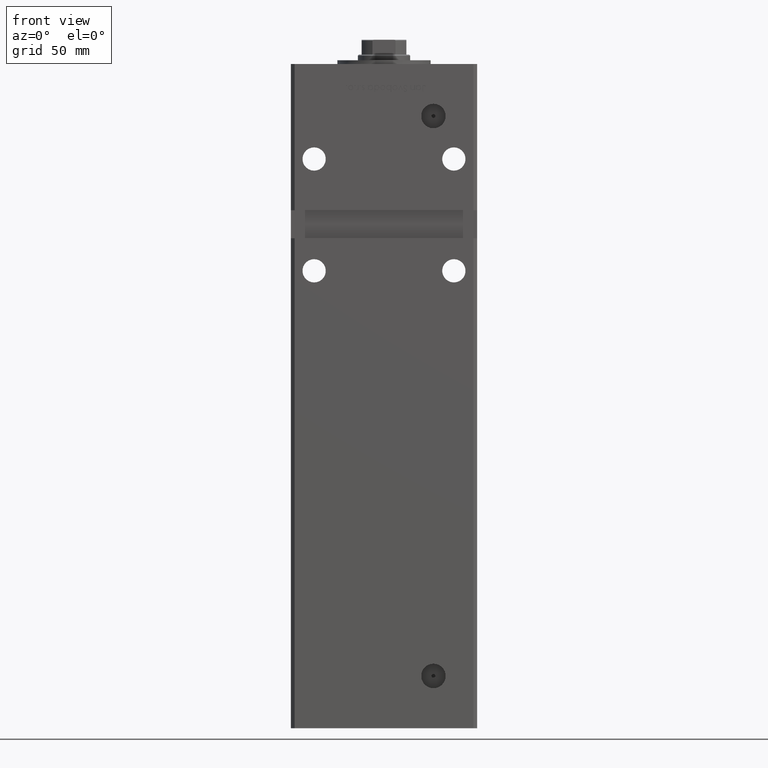
[diagram: clean part render]
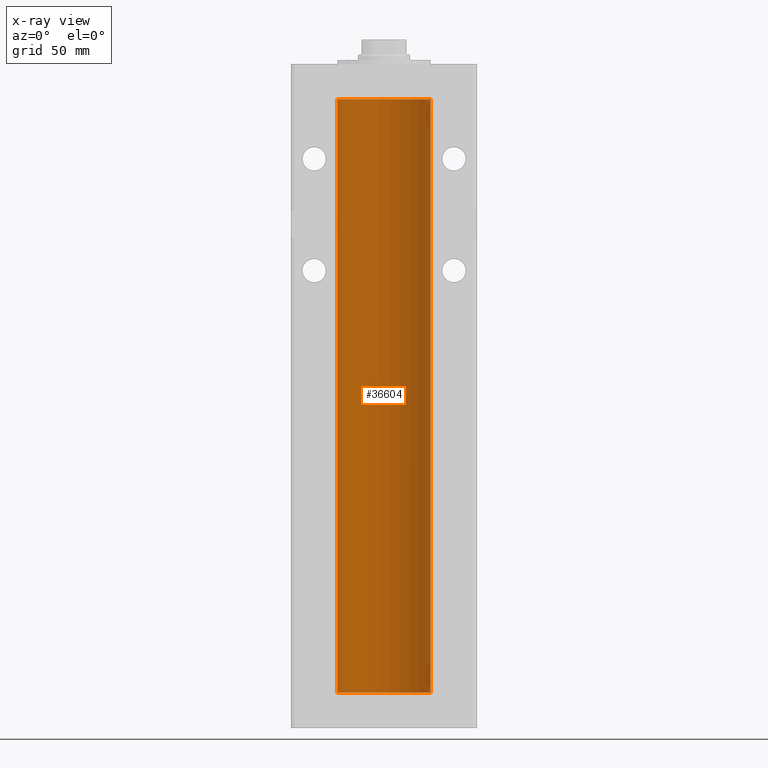
[diagram: x-ray — body ghosted, one internal face saturated and labeled with its STEP entity id]
A machine part, front view, then the same camera in x-ray: the body is ghosted and one INTERNAL B-rep face — a face not visible from any outside direction — is saturated and labeled: STEP entity #36604.
In plain terms, the highlighted cylindrical surface (partial cylindrical patch) has radius 25 mm, axis along (-0, -0, -1).
Its self-contained STEP definition (entity closure, byte-faithful):
#2084 = CARTESIAN_POINT ( 'NONE',  ( -25.00000000000000000, 0.000000000000000000, 318.5000000000000000 ) ) ;
#2604 = LINE ( 'NONE', #2084, #24464 ) ;
#5935 = EDGE_CURVE ( 'NONE', #34158, #52890, #11674, .T. ) ;
#6318 = CARTESIAN_POINT ( 'NONE',  ( 0.000000000000000000, 0.000000000000000000, 318.5000000000000000 ) ) ;
#6588 = DIRECTION ( 'NONE',  ( 1.000000000000000000, 0.000000000000000000, 0.000000000000000000 ) ) ;
#8939 = ORIENTED_EDGE ( 'NONE', *, *, #26474, .F. ) ;
#10579 = CYLINDRICAL_SURFACE ( 'NONE', #44170, 25.00000000000000000 ) ;
#11674 = LINE ( 'NONE', #52011, #33715 ) ;
#12431 = EDGE_CURVE ( 'NONE', #48815, #47324, #2604, .T. ) ;
#14526 = ORIENTED_EDGE ( 'NONE', *, *, #31904, .T. ) ;
#15553 = DIRECTION ( 'NONE',  ( 1.000000000000000000, 0.000000000000000000, 0.000000000000000000 ) ) ;
#17770 = EDGE_LOOP ( 'NONE', ( #44779, #14526, #51853, #8939 ) ) ;
#18530 = DIRECTION ( 'NONE',  ( -0.000000000000000000, -0.000000000000000000, -1.000000000000000000 ) ) ;
#22531 = CARTESIAN_POINT ( 'NONE',  ( 25.00000000000000000, 3.061616997868383043E-15, 318.5000000000000000 ) ) ;
#24464 = VECTOR ( 'NONE', #18530, 1000.000000000000000 ) ;
#26474 = EDGE_CURVE ( 'NONE', #52890, #47324, #42907, .T. ) ;
#27281 = DIRECTION ( 'NONE',  ( -0.000000000000000000, -0.000000000000000000, -1.000000000000000000 ) ) ;
#28294 = AXIS2_PLACEMENT_3D ( 'NONE', #53178, #36017, #15553 ) ;
#30841 = DIRECTION ( 'NONE',  ( -0.000000000000000000, 0.000000000000000000, 1.000000000000000000 ) ) ;
#31052 = FACE_OUTER_BOUND ( 'NONE', #17770, .T. ) ;
#31904 = EDGE_CURVE ( 'NONE', #34158, #48815, #32866, .T. ) ;
#32654 = DIRECTION ( 'NONE',  ( -0.000000000000000000, -0.000000000000000000, -1.000000000000000000 ) ) ;
#32866 = CIRCLE ( 'NONE', #50878, 25.00000000000000000 ) ;
#33715 = VECTOR ( 'NONE', #32654, 1000.000000000000000 ) ;
#34158 = VERTEX_POINT ( 'NONE', #22531 ) ;
#36017 = DIRECTION ( 'NONE',  ( -0.000000000000000000, 0.000000000000000000, 1.000000000000000000 ) ) ;
#36604 = ADVANCED_FACE ( 'NONE', ( #31052 ), #10579, .F. ) ;
#38423 = CARTESIAN_POINT ( 'NONE',  ( 25.00000000000000000, 3.061616997868383043E-15, 0.000000000000000000 ) ) ;
#41389 = CARTESIAN_POINT ( 'NONE',  ( -25.00000000000000000, 0.000000000000000000, 318.5000000000000000 ) ) ;
#42169 = CARTESIAN_POINT ( 'NONE',  ( -25.00000000000000000, 0.000000000000000000, 0.000000000000000000 ) ) ;
#42907 = CIRCLE ( 'NONE', #28294, 25.00000000000000000 ) ;
#43396 = CARTESIAN_POINT ( 'NONE',  ( 0.000000000000000000, 0.000000000000000000, 318.5000000000000000 ) ) ;
#44170 = AXIS2_PLACEMENT_3D ( 'NONE', #43396, #27281, #51708 ) ;
#44779 = ORIENTED_EDGE ( 'NONE', *, *, #5935, .F. ) ;
#47324 = VERTEX_POINT ( 'NONE', #42169 ) ;
#48815 = VERTEX_POINT ( 'NONE', #41389 ) ;
#50878 = AXIS2_PLACEMENT_3D ( 'NONE', #6318, #30841, #6588 ) ;
#51708 = DIRECTION ( 'NONE',  ( -1.000000000000000000, 0.000000000000000000, 0.000000000000000000 ) ) ;
#51853 = ORIENTED_EDGE ( 'NONE', *, *, #12431, .T. ) ;
#52011 = CARTESIAN_POINT ( 'NONE',  ( 25.00000000000000000, 3.061616997868383043E-15, 318.5000000000000000 ) ) ;
#52890 = VERTEX_POINT ( 'NONE', #38423 ) ;
#53178 = CARTESIAN_POINT ( 'NONE',  ( 0.000000000000000000, 0.000000000000000000, 0.000000000000000000 ) ) ;